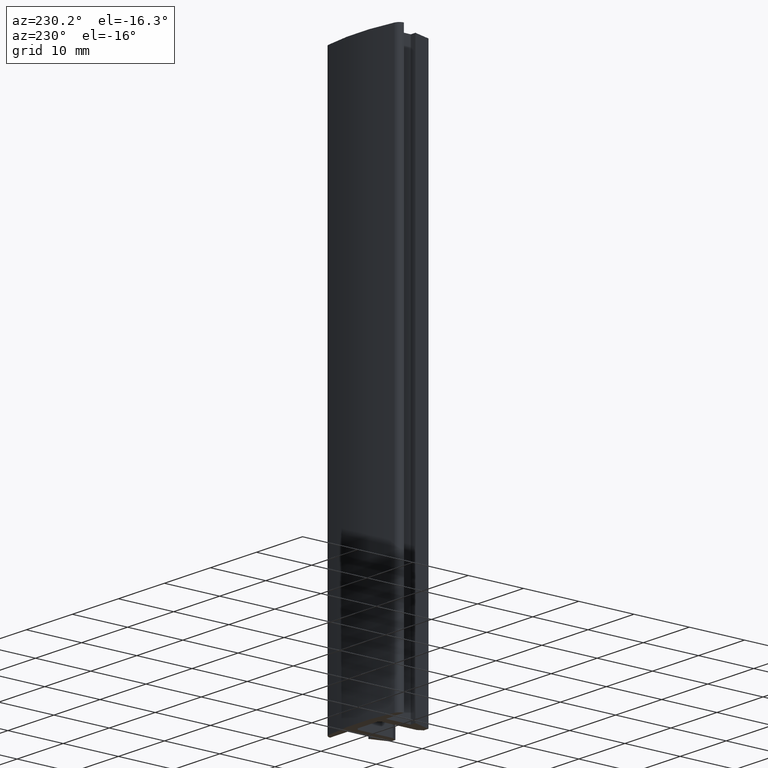
[diagram: clean part render]
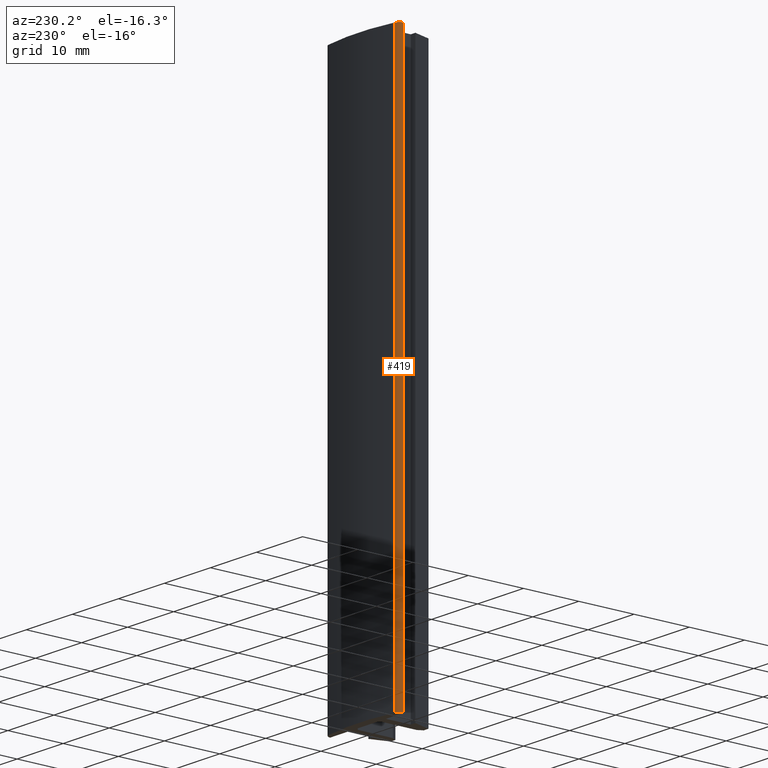
[diagram: same view with one face highlighted and labeled with its STEP entity id]
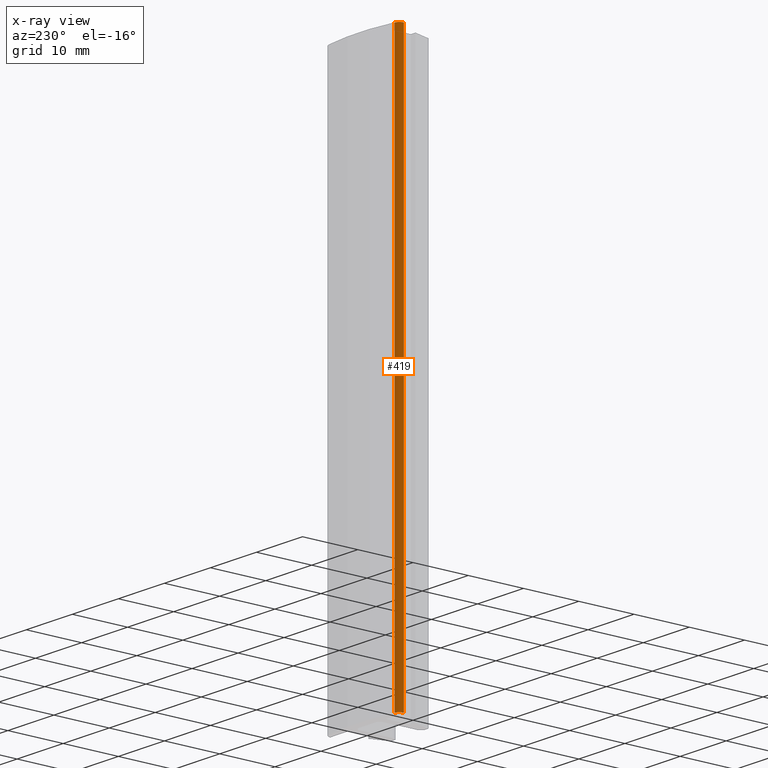
[diagram: x-ray of the same camera — body ghosted, the highlighted face saturated]
A machine part, auxiliary view. The second image highlights one B-rep face of the part: STEP entity #419.
The next image is the same camera in x-ray: the body ghosted, the highlighted face saturated — about 0% of this face is hidden behind the body in this view.
In plain terms, the highlighted cylindrical surface (edge-blend (fillet) strip) has radius 1 mm, axis along (0, 0, 1).
Its self-contained STEP definition (entity closure, byte-faithful):
#15=CIRCLE('',#462,1.);
#16=CIRCLE('',#463,1.);
#21=CYLINDRICAL_SURFACE('',#461,1.);
#28=FACE_OUTER_BOUND('',#50,.T.);
#50=EDGE_LOOP('',(#292,#293,#294,#295));
#80=LINE('',#624,#134);
#81=LINE('',#630,#135);
#134=VECTOR('',#507,10.);
#135=VECTOR('',#514,10.);
#184=VERTEX_POINT('',#620);
#185=VERTEX_POINT('',#622);
#186=VERTEX_POINT('',#626);
#187=VERTEX_POINT('',#628);
#228=EDGE_CURVE('',#184,#185,#80,.T.);
#229=EDGE_CURVE('',#186,#184,#15,.T.);
#230=EDGE_CURVE('',#187,#185,#16,.T.);
#231=EDGE_CURVE('',#186,#187,#81,.T.);
#292=ORIENTED_EDGE('',*,*,#229,.T.);
#293=ORIENTED_EDGE('',*,*,#228,.T.);
#294=ORIENTED_EDGE('',*,*,#230,.F.);
#295=ORIENTED_EDGE('',*,*,#231,.F.);
#419=ADVANCED_FACE('',(#28),#21,.T.);
#461=AXIS2_PLACEMENT_3D('',#625,#508,#509);
#462=AXIS2_PLACEMENT_3D('',#627,#510,#511);
#463=AXIS2_PLACEMENT_3D('',#629,#512,#513);
#507=DIRECTION('',(0.,0.,1.));
#508=DIRECTION('center_axis',(0.,0.,1.));
#509=DIRECTION('ref_axis',(-0.179487179487179,0.983760312474404,0.));
#510=DIRECTION('center_axis',(0.,0.,1.));
#511=DIRECTION('ref_axis',(-0.179487179487179,0.983760312474404,0.));
#512=DIRECTION('center_axis',(0.,0.,1.));
#513=DIRECTION('ref_axis',(-0.179487179487179,0.983760312474404,0.));
#514=DIRECTION('',(0.,0.,1.));
#620=CARTESIAN_POINT('',(-8.00000000000001,4.47974885898094E-15,0.));
#622=CARTESIAN_POINT('',(-8.00000000000001,4.44089209850063E-15,100.));
#624=CARTESIAN_POINT('',(-8.00000000000001,4.47974885898094E-15,0.));
#625=CARTESIAN_POINT('Origin',(-7.00000000000001,4.51411222483776E-15,0.));
#626=CARTESIAN_POINT('',(-7.17948717948719,0.983760312474405,0.));
#627=CARTESIAN_POINT('Origin',(-7.00000000000001,4.51411222483776E-15,0.));
#628=CARTESIAN_POINT('',(-7.17948717948719,0.983760312474405,100.));
#629=CARTESIAN_POINT('Origin',(-7.00000000000001,4.51411222483776E-15,100.));
#630=CARTESIAN_POINT('',(-7.17948717948719,0.983760312474405,0.));